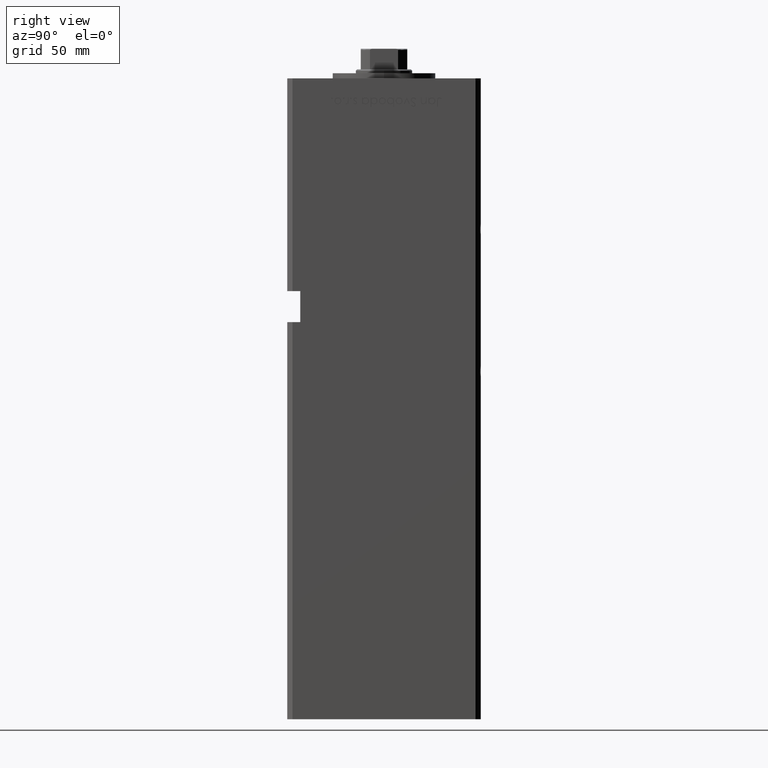
[diagram: clean part render]
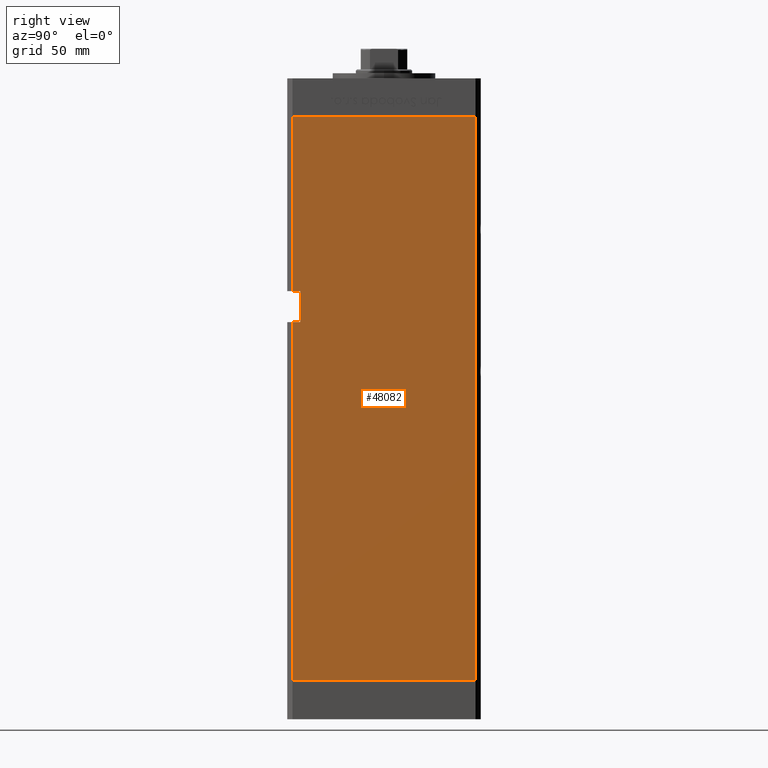
[diagram: same view with one face highlighted and labeled with its STEP entity id]
A machine part, right view. The second image highlights one B-rep face of the part: STEP entity #48082.
In plain terms, the highlighted planar face has unit normal (1, -0, 0).
Its self-contained STEP definition (entity closure, byte-faithful):
#3221 = VERTEX_POINT ( 'NONE', #11316 ) ;
#3236 = EDGE_LOOP ( 'NONE', ( #29909, #31783, #28200, #43201, #11615, #51729, #5730, #38293 ) ) ;
#4473 = DIRECTION ( 'NONE',  ( -0.000000000000000000, -0.000000000000000000, -1.000000000000000000 ) ) ;
#5123 = DIRECTION ( 'NONE',  ( -0.000000000000000000, -0.000000000000000000, -1.000000000000000000 ) ) ;
#5730 = ORIENTED_EDGE ( 'NONE', *, *, #26728, .F. ) ;
#5850 = VECTOR ( 'NONE', #5123, 1000.000000000000000 ) ;
#8614 = CARTESIAN_POINT ( 'NONE',  ( 42.49999999999998579, -35.50000000000000711, 218.5000000000000000 ) ) ;
#8673 = DIRECTION ( 'NONE',  ( -0.000000000000000000, -1.000000000000000000, -0.000000000000000000 ) ) ;
#9406 = FACE_OUTER_BOUND ( 'NONE', #3236, .T. ) ;
#9596 = CARTESIAN_POINT ( 'NONE',  ( 42.49999999999998579, -32.50000000000000711, 151.0000000000000568 ) ) ;
#9662 = PLANE ( 'NONE',  #50253 ) ;
#10122 = LINE ( 'NONE', #35138, #45599 ) ;
#11316 = CARTESIAN_POINT ( 'NONE',  ( 42.49999999999998579, -35.50000000000000711, 0.000000000000000000 ) ) ;
#11615 = ORIENTED_EDGE ( 'NONE', *, *, #26780, .T. ) ;
#11897 = CARTESIAN_POINT ( 'NONE',  ( 42.49999999999998579, -35.50000000000000711, 139.0000000000000284 ) ) ;
#12938 = CARTESIAN_POINT ( 'NONE',  ( 42.50000000000001421, 35.50000000000000711, 218.5000000000000000 ) ) ;
#13009 = VERTEX_POINT ( 'NONE', #26341 ) ;
#13171 = LINE ( 'NONE', #38198, #5850 ) ;
#13310 = CARTESIAN_POINT ( 'NONE',  ( 42.49999999999998579, -32.50000000000000000, 139.0000000000000284 ) ) ;
#13675 = EDGE_CURVE ( 'NONE', #14044, #13009, #24890, .T. ) ;
#14044 = VERTEX_POINT ( 'NONE', #12938 ) ;
#14066 = CARTESIAN_POINT ( 'NONE',  ( 42.49999999999998579, -32.50000000000000711, 151.0000000000000568 ) ) ;
#16037 = LINE ( 'NONE', #35445, #28502 ) ;
#16717 = CARTESIAN_POINT ( 'NONE',  ( 42.49999999999998579, -32.50000000000000711, 139.0000000000000284 ) ) ;
#16895 = VECTOR ( 'NONE', #4473, 1000.000000000000000 ) ;
#16952 = VERTEX_POINT ( 'NONE', #11897 ) ;
#17242 = EDGE_CURVE ( 'NONE', #16952, #3221, #13171, .T. ) ;
#17825 = VERTEX_POINT ( 'NONE', #13310 ) ;
#18101 = VECTOR ( 'NONE', #50227, 1000.000000000000000 ) ;
#18176 = LINE ( 'NONE', #9596, #18101 ) ;
#22665 = LINE ( 'NONE', #14066, #25781 ) ;
#24890 = LINE ( 'NONE', #41307, #16895 ) ;
#25321 = LINE ( 'NONE', #16717, #51981 ) ;
#25781 = VECTOR ( 'NONE', #42591, 1000.000000000000000 ) ;
#26044 = DIRECTION ( 'NONE',  ( 1.000000000000000000, -3.909236002201255146E-16, 0.000000000000000000 ) ) ;
#26341 = CARTESIAN_POINT ( 'NONE',  ( 42.50000000000001421, 35.50000000000000711, 0.000000000000000000 ) ) ;
#26728 = EDGE_CURVE ( 'NONE', #49916, #47934, #18176, .T. ) ;
#26780 = EDGE_CURVE ( 'NONE', #14044, #50532, #10122, .T. ) ;
#28200 = ORIENTED_EDGE ( 'NONE', *, *, #31324, .F. ) ;
#28502 = VECTOR ( 'NONE', #47807, 1000.000000000000000 ) ;
#29544 = EDGE_CURVE ( 'NONE', #17825, #49916, #22665, .T. ) ;
#29909 = ORIENTED_EDGE ( 'NONE', *, *, #47036, .T. ) ;
#31324 = EDGE_CURVE ( 'NONE', #13009, #3221, #31401, .T. ) ;
#31401 = LINE ( 'NONE', #34626, #37865 ) ;
#31783 = ORIENTED_EDGE ( 'NONE', *, *, #17242, .T. ) ;
#34082 = CARTESIAN_POINT ( 'NONE',  ( 42.49999999999998579, -32.50000000000000711, 151.0000000000000568 ) ) ;
#34114 = EDGE_CURVE ( 'NONE', #50532, #47934, #16037, .T. ) ;
#34626 = CARTESIAN_POINT ( 'NONE',  ( 42.50000000000001421, 35.50000000000000711, 0.000000000000000000 ) ) ;
#35138 = CARTESIAN_POINT ( 'NONE',  ( 42.50000000000001421, 35.50000000000000711, 218.5000000000000000 ) ) ;
#35445 = CARTESIAN_POINT ( 'NONE',  ( 42.49999999999998579, -35.50000000000000711, 218.5000000000000000 ) ) ;
#37865 = VECTOR ( 'NONE', #46721, 1000.000000000000000 ) ;
#38198 = CARTESIAN_POINT ( 'NONE',  ( 42.49999999999998579, -35.50000000000000711, 218.5000000000000000 ) ) ;
#38293 = ORIENTED_EDGE ( 'NONE', *, *, #29544, .F. ) ;
#41307 = CARTESIAN_POINT ( 'NONE',  ( 42.50000000000001421, 35.50000000000000711, 218.5000000000000000 ) ) ;
#42591 = DIRECTION ( 'NONE',  ( -0.000000000000000000, -0.000000000000000000, 1.000000000000000000 ) ) ;
#42924 = DIRECTION ( 'NONE',  ( -3.909236002201255146E-16, -1.000000000000000000, 0.000000000000000000 ) ) ;
#43201 = ORIENTED_EDGE ( 'NONE', *, *, #13675, .F. ) ;
#44109 = CARTESIAN_POINT ( 'NONE',  ( 42.49999999999998579, -35.50000000000000711, 151.0000000000000568 ) ) ;
#45599 = VECTOR ( 'NONE', #42924, 1000.000000000000000 ) ;
#46242 = DIRECTION ( 'NONE',  ( 3.909236002201255146E-16, 1.000000000000000000, 0.000000000000000000 ) ) ;
#46721 = DIRECTION ( 'NONE',  ( -3.909236002201255146E-16, -1.000000000000000000, 0.000000000000000000 ) ) ;
#47036 = EDGE_CURVE ( 'NONE', #17825, #16952, #25321, .T. ) ;
#47807 = DIRECTION ( 'NONE',  ( -0.000000000000000000, -0.000000000000000000, -1.000000000000000000 ) ) ;
#47934 = VERTEX_POINT ( 'NONE', #44109 ) ;
#48082 = ADVANCED_FACE ( 'NONE', ( #9406 ), #9662, .T. ) ;
#49916 = VERTEX_POINT ( 'NONE', #34082 ) ;
#50227 = DIRECTION ( 'NONE',  ( -0.000000000000000000, -1.000000000000000000, -0.000000000000000000 ) ) ;
#50253 = AXIS2_PLACEMENT_3D ( 'NONE', #50549, #26044, #46242 ) ;
#50532 = VERTEX_POINT ( 'NONE', #8614 ) ;
#50549 = CARTESIAN_POINT ( 'NONE',  ( 42.50000000000001421, 35.50000000000000711, 218.5000000000000000 ) ) ;
#51729 = ORIENTED_EDGE ( 'NONE', *, *, #34114, .T. ) ;
#51981 = VECTOR ( 'NONE', #8673, 1000.000000000000000 ) ;